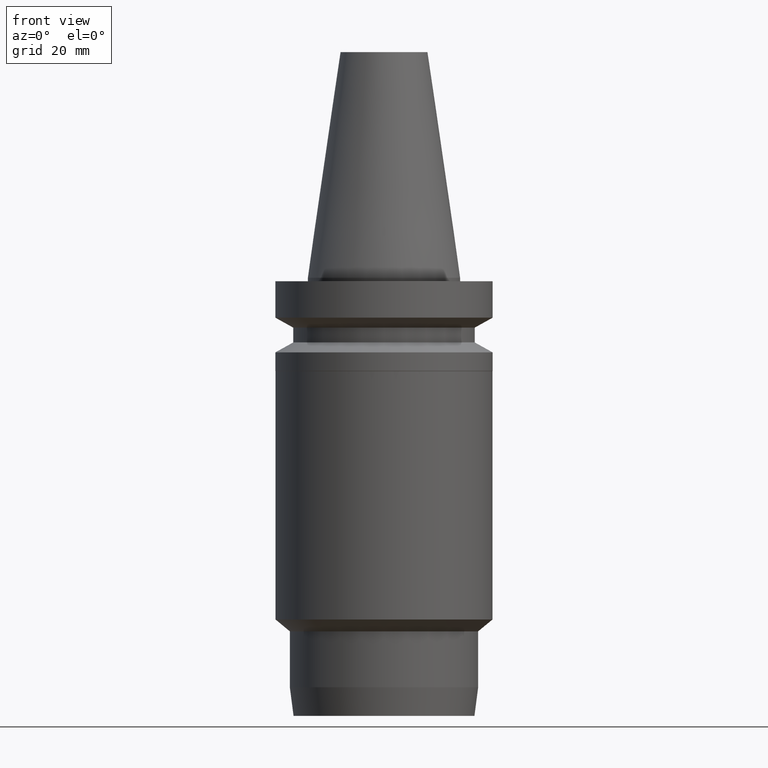
[diagram: clean part render]
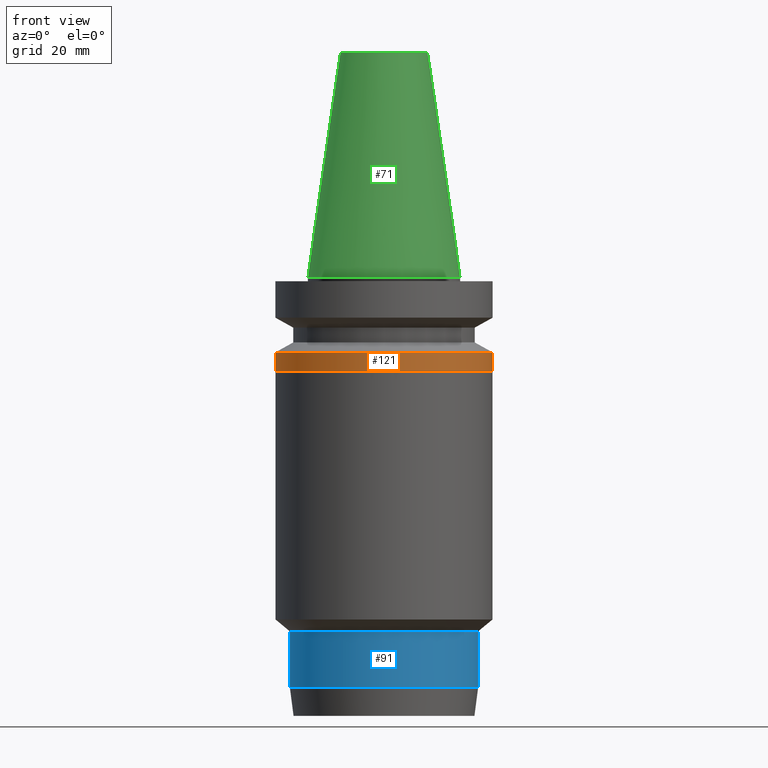
[diagram: same view with three faces highlighted in distinct colors, each labeled with its STEP entity id]
A machine part, front view with three faces highlighted in distinct colors.
Their STEP definitions:

[orange] entity #121 — the highlighted cylindrical surface (bore or boss wall) has radius 31.5 mm, axis along (0, -0, -1).
#76=EDGE_CURVE('Unnamed[1]',#179,#179,#180,.T.);
#83=EDGE_CURVE('Unnamed[1]',#190,#190,#191,.T.);
#121=ADVANCED_FACE('Unnamed[1]',(#249,#250),#251,.T.);
#179=VERTEX_POINT('',#311);
#180=CIRCLE('',#312,31.5000000000003);
#190=VERTEX_POINT('',#325);
#191=CIRCLE('',#326,31.5000000000007);
#249=FACE_BOUND('',#399,.T.);
#250=FACE_BOUND('',#400,.T.);
#251=CYLINDRICAL_SURFACE('',#401,31.5000000000005);
#311=CARTESIAN_POINT('',(1.65327317884754E-015,31.5000000000004,-26.9999999999773));
#312=AXIS2_PLACEMENT_3D('',#453,#454,#455);
#325=CARTESIAN_POINT('',(1.32473071268174E-015,31.5000000000007,-21.6344943473346));
#326=AXIS2_PLACEMENT_3D('',#465,#466,#467);
#399=EDGE_LOOP('',(#531));
#400=EDGE_LOOP('',(#532));
#401=AXIS2_PLACEMENT_3D('',#533,#534,#535);
#453=CARTESIAN_POINT('',(1.65327317884754E-015,3.42059236375121E-014,-26.9999999999773));
#454=DIRECTION('',(6.12323399573677E-017,-4.59983100815415E-016,-1.0));
#455=DIRECTION('',(2.33386888730046E-032,1.0,-4.59983100815415E-016));
#465=CARTESIAN_POINT('',(1.32473071268174E-015,3.66739655650573E-014,-21.6344943473346));
#466=DIRECTION('',(6.12323399573677E-017,-4.59983100815415E-016,-1.0));
#467=DIRECTION('',(2.33386888730046E-032,1.0,-4.59983100815415E-016));
#531=ORIENTED_EDGE('',*,*,#76,.F.);
#532=ORIENTED_EDGE('',*,*,#83,.T.);
#533=CARTESIAN_POINT('',(1.48900194576464E-015,3.54399446012847E-014,-24.317247173656));
#534=DIRECTION('',(6.12323399573677E-017,-4.59983100815415E-016,-1.0));
#535=DIRECTION('',(2.33386888730046E-032,1.0,-4.59983100815415E-016));

[blue] entity #91 — the highlighted cylindrical surface (bore or boss wall) has radius 27.5 mm, axis along (0, -0, -1).
#60=EDGE_CURVE('Unnamed[1]',#155,#155,#156,.T.);
#91=ADVANCED_FACE('Unnamed[1]',(#202,#203),#204,.T.);
#118=EDGE_CURVE('Unnamed[1]',#245,#245,#246,.T.);
#155=VERTEX_POINT('',#282);
#156=CIRCLE('',#283,27.4999999999989);
#202=FACE_BOUND('',#340,.T.);
#203=FACE_BOUND('',#341,.T.);
#204=CYLINDRICAL_SURFACE('',#342,27.4999999999968);
#245=VERTEX_POINT('',#394);
#246=CIRCLE('',#395,27.4999999999948);
#282=CARTESIAN_POINT('',(6.27587521720903E-015,27.4999999999989,-102.492820323028));
#283=AXIS2_PLACEMENT_3D('',#428,#429,#430);
#340=EDGE_LOOP('',(#478));
#341=EDGE_LOOP('',(#479));
#342=AXIS2_PLACEMENT_3D('',#480,#481,#482);
#394=CARTESIAN_POINT('',(7.26887633277537E-015,27.4999999999948,-118.709759219332));
#395=AXIS2_PLACEMENT_3D('',#527,#528,#529);
#428=CARTESIAN_POINT('',(6.27587521720903E-015,-5.19497943985536E-016,-102.492820323028));
#429=DIRECTION('',(6.12323399573677E-017,-4.59983100815415E-016,-1.0));
#430=DIRECTION('',(2.33386888730046E-032,1.0,-4.59983100815415E-016));
#478=ORIENTED_EDGE('',*,*,#118,.F.);
#479=ORIENTED_EDGE('',*,*,#60,.T.);
#480=CARTESIAN_POINT('',(6.7723757749922E-015,-4.24925686361356E-015,-110.60128977118));
#481=DIRECTION('',(6.12323399573677E-017,-4.59983100815415E-016,-1.0));
#482=DIRECTION('',(2.33386888730046E-032,1.0,-4.59983100815415E-016));
#527=CARTESIAN_POINT('',(7.26887633277537E-015,-7.97901578324158E-015,-118.709759219332));
#528=DIRECTION('',(6.12323399573677E-017,-4.59983100815415E-016,-1.0));
#529=DIRECTION('',(2.33386888730046E-032,1.0,-4.59983100815415E-016));

[green] entity #71 — the highlighted conical surface has half-angle 8.297 deg.
#71=ADVANCED_FACE('Unnamed[1]',(#170,#171),#172,.T.);
#85=EDGE_CURVE('Unnamed[1]',#193,#193,#194,.T.);
#93=EDGE_CURVE('Unnamed[1]',#206,#206,#207,.T.);
#170=FACE_BOUND('',#300,.T.);
#171=FACE_BOUND('',#301,.T.);
#172=CONICAL_SURFACE('',#302,17.4562500000001,0.144812498238936);
#193=VERTEX_POINT('',#329);
#194=CIRCLE('',#330,12.6875000000001);
#206=VERTEX_POINT('',#345);
#207=CIRCLE('',#346,22.225);
#300=EDGE_LOOP('',(#442));
#301=EDGE_LOOP('',(#443));
#302=AXIS2_PLACEMENT_3D('',#444,#445,#446);
#329=CARTESIAN_POINT('',(-4.00459503321185E-015,12.6875000000002,65.4000000000001));
#330=AXIS2_PLACEMENT_3D('',#468,#469,#470);
#345=CARTESIAN_POINT('',(1.71319921032766E-029,22.2250000000001,-2.8153873565375E-013));
#346=AXIS2_PLACEMENT_3D('',#483,#484,#485);
#442=ORIENTED_EDGE('',*,*,#93,.F.);
#443=ORIENTED_EDGE('',*,*,#85,.T.);
#444=CARTESIAN_POINT('',(-2.00229751660592E-015,6.16669147561819E-014,32.6999999999999));
#445=DIRECTION('',(6.12323399573677E-017,-4.59983100815415E-016,-1.0));
#446=DIRECTION('',(2.33386888730046E-032,1.0,-4.59983100815415E-016));
#468=CARTESIAN_POINT('',(-4.00459503321185E-015,7.67083621528461E-014,65.4000000000001));
#469=DIRECTION('',(6.12323399573677E-017,-4.59983100815415E-016,-1.0));
#470=DIRECTION('',(2.33386888730046E-032,1.0,-4.59983100815415E-016));
#483=CARTESIAN_POINT('',(1.65331138531142E-029,4.66254673595178E-014,-2.70006239588838E-013));
#484=DIRECTION('',(6.12323399573677E-017,-4.59983100815415E-016,-1.0));
#485=DIRECTION('',(2.33386888730046E-032,1.0,-4.59983100815415E-016));